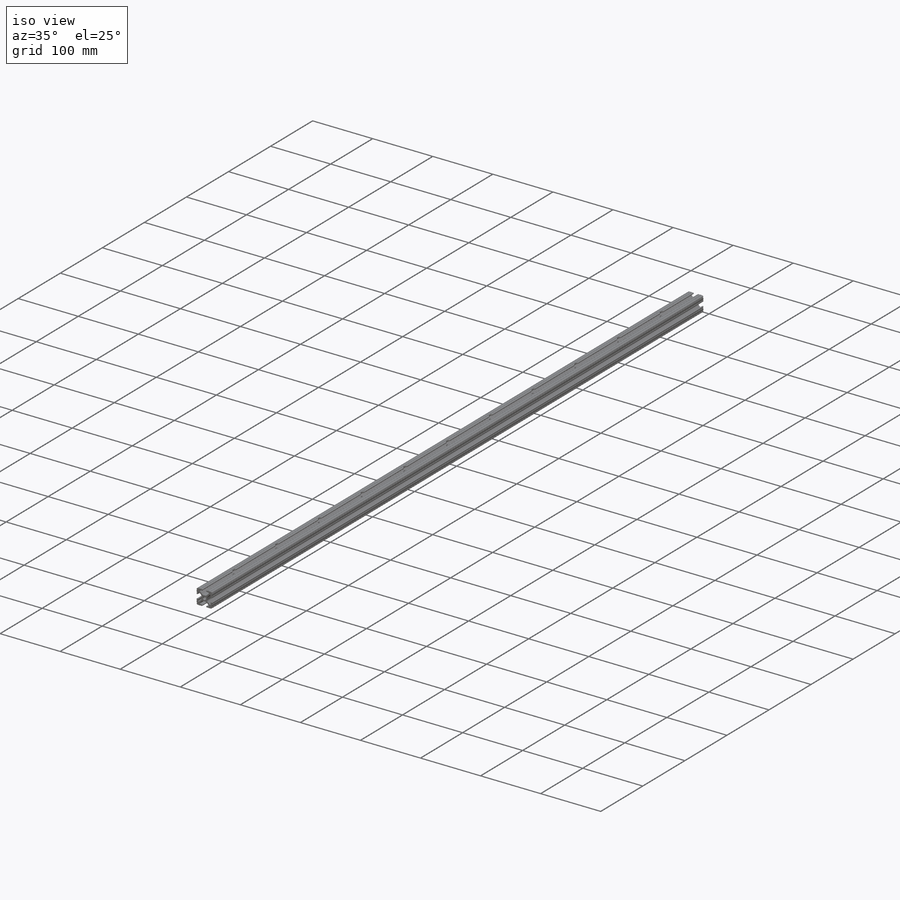
[diagram: iso view]
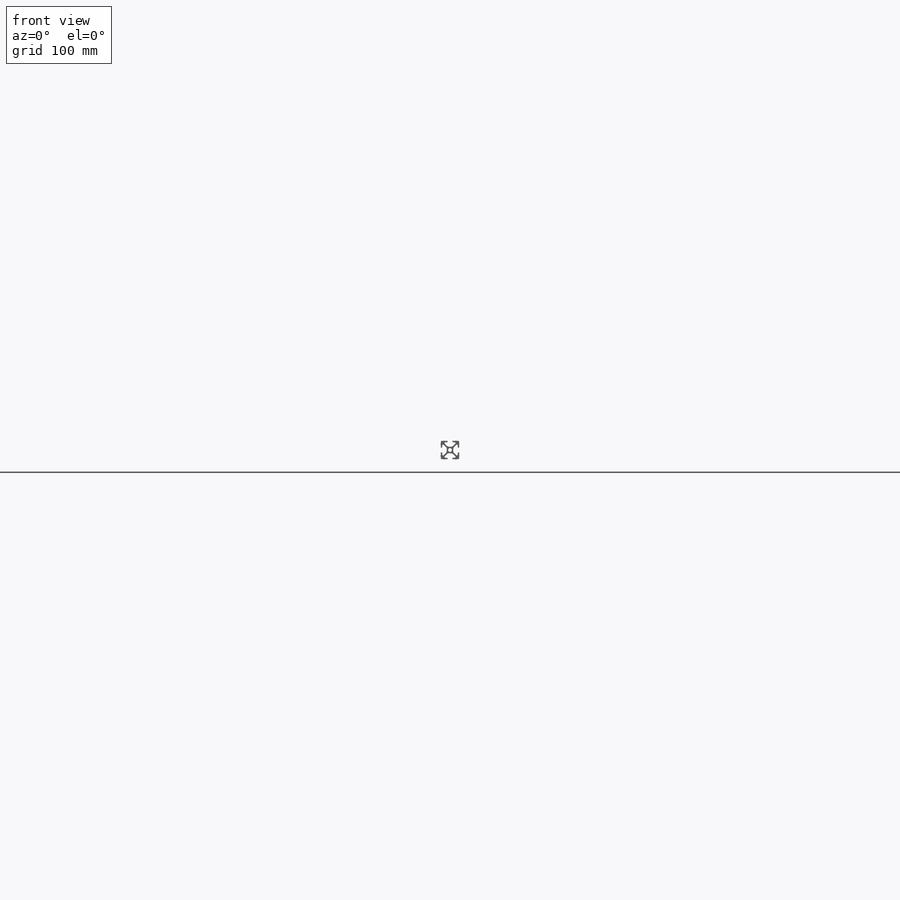
[diagram: front view]
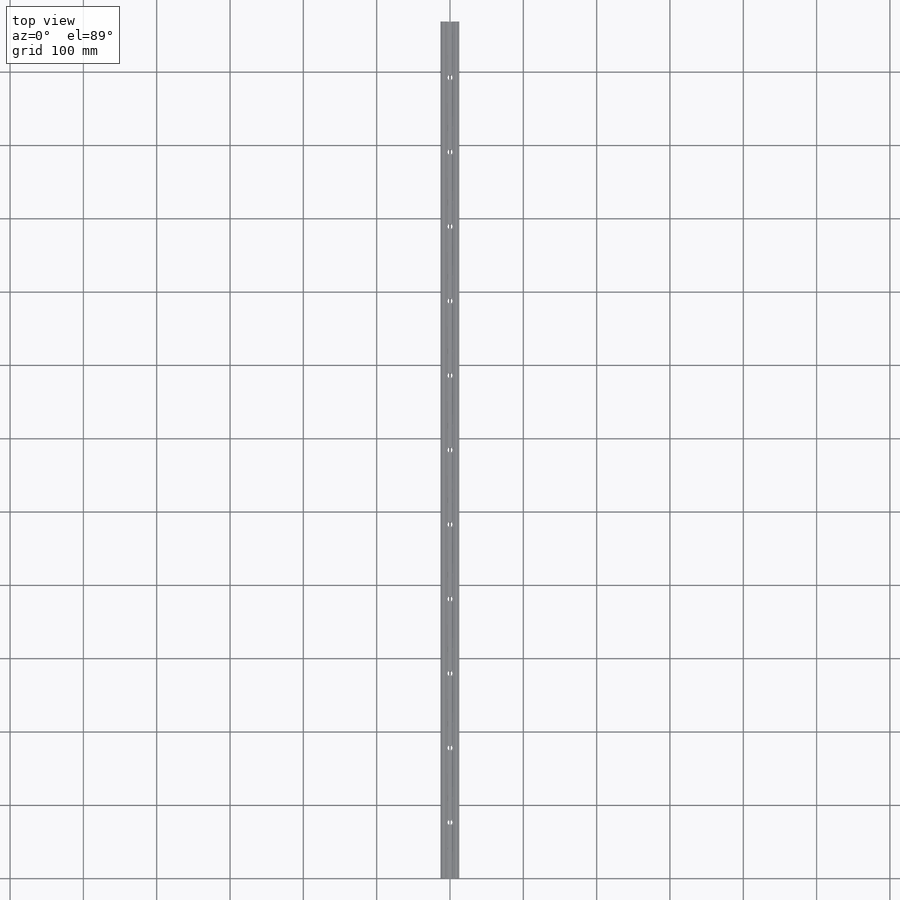
[diagram: top view]
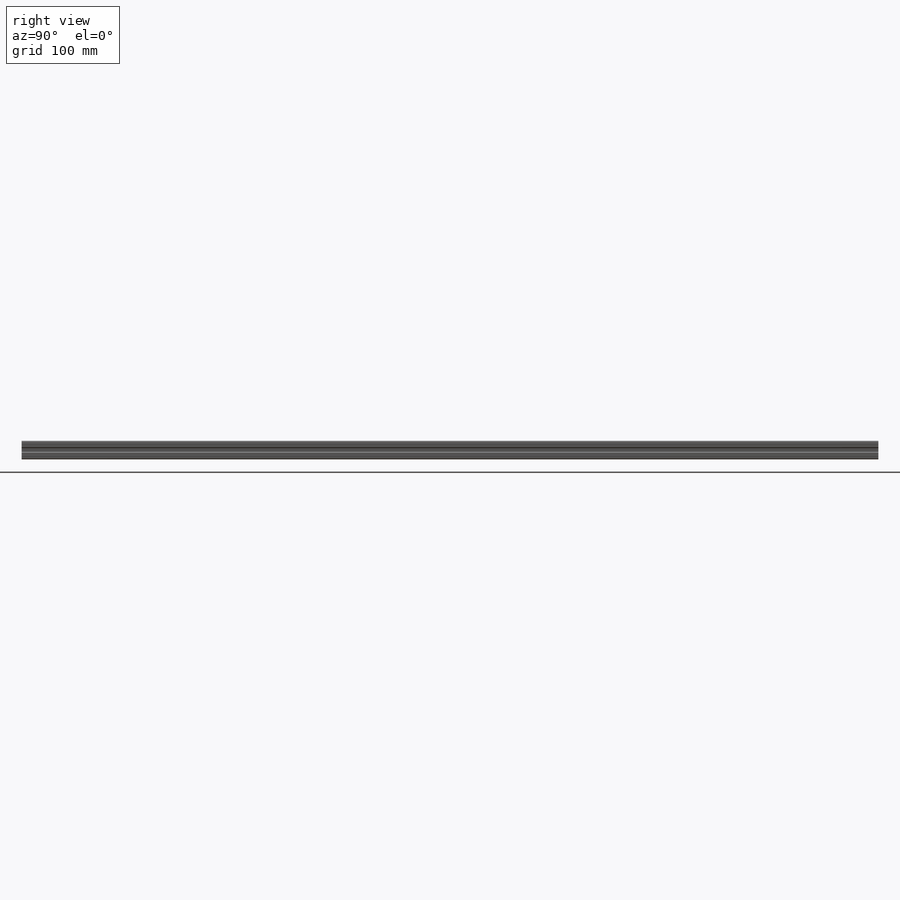
[diagram: right view]
SOLIDWORKS PART (.sldprt)
format: sldprt  version: not decoded by parser v0  size: 1,439,232 bytes
history: native  units: mm
features: sketch x4, material x1, extrude x1, hole x1, pattern_linear x1, plane x1, cut_extrude x1 (+12 scaffold rows collapsed)
feature tree (22):
  scaffold x12  (default folders/planes/origin — collapsed)
  material  "6061-T6 (SS)"
  sketch  "Sketch1"  dims[c1.D1=5.207mm c1.D9=~1.027411mm c1.D7=~1.033909mm c1.D11=~1.049012mm c1.D12=0.508mm c1.D13=2.1082mm c1.D14=~1.027411mm c1.D15=3.175mm c1.D16=~1.080373mm c2.D7=~1.080373mm c2.D2=25.4mm c2.D3=12.7mm c2.D4=5.842mm c2.D5=8.2042mm c2.D6=6.477mm c3.D7=9.017mm c3.D8=2.2098mm c3.D9=14.859mm c3.D10=2.2098mm c3.D2=25.4mm c3.D4=6.477mm c3.D6=9.017mm c3.D3=12.7mm c3.D5=8.2042mm c4.D7=2.2098mm c4.D11=2.2098mm c5.D7=~1.655778mm c5.D11=~1.709254mm c5.D12=~3.898273mm c5.D13=~3.95227mm c5.D14=~5.441006mm c5.D15=~5.825127mm c5.D16=~7.17965mm c5.D17=~7.207036mm c5.D18=7.6835mm c5.D19=~8.737131mm c5.D20=~9.462789mm c5.D21=~9.550443mm c5.D22=~10.058443mm c5.D23=~10.566443mm c5.D24=10.5918mm c5.D25=~12.699847mm c5.D26=~1.655778mm c5.D27=~1.709254mm c5.D28=~3.898273mm c5.D29=~3.95227mm c5.D30=~5.441006mm c5.D31=~5.825127mm c5.D32=~7.17965mm c5.D33=~7.207036mm c5.D34=7.6835mm c5.D35=~8.737131mm c5.D36=~9.462789mm c5.D37=~9.550443mm c5.D38=~10.058443mm c5.D39=~10.566443mm c5.D40=10.5918mm c5.D41=~12.699847mm c6.D7=~1.593186mm c6.D11=~3.840816mm c6.D12=~5.423169mm c6.D13=~5.825084mm c6.D14=~6.402089mm c6.D15=~7.129409mm c6.D16=7.6708mm c6.D17=~8.724371mm c6.D18=~9.456291mm c6.D19=9.5504mm c6.D20=10.0584mm c6.D21=10.5664mm c6.D22=10.5918mm c6.D23=~12.699848mm c6.D24=~1.593186mm c6.D25=~3.840816mm c6.D26=~5.42369mm c6.D27=~5.825084mm c6.D28=~6.402089mm c6.D29=~7.129409mm c6.D30=7.6708mm c6.D31=~8.645193mm c6.D32=~9.409827mm c6.D33=9.5504mm c6.D34=10.0584mm c6.D35=10.5664mm c6.D36=10.5918mm c6.D37=~12.699848mm c7.D7=~12.699848mm c7.D1=0.0mm]
  extrude  "Extrude1"  Depth=1168.4mm LENGTH=1168.4mm
  hole  "Hole1, 8020 No. 7256"  Diameter=20mm Depth=100mm
  sketch  "Sketch3"  dims[D1=76.2mm]
  sketch  "Sketch2"  dims[c1.Hole Ø=20.0mm c1.Depth=100.0mm c1.Drill Angle=118.0deg c1.C.Sink Angle=90.0deg c1.C.Bore Ø=40.0mm c1.C.Bore Depth=20.0mm c1.Diameter=6.5278mm c2.Depth=25.4mm c2.C-Bore Diameter=10.3124mm c2.C-Bore Depth=8.255mm c2.Drill Angle=118.0deg]
  pattern_linear  "LPattern1"  Count1=11 Count2=1 Spacing1=101.6mm Spacing2=2.54mm
  plane  "mid plane"
  sketch  "Sketch4"  dims[D1=254.0mm D2=25.4mm D3=50.8mm]
  cut_extrude  "Cut-Extrude1"  [1 undecoded]
decode coverage: 7 of 8 modeling features carry decoded parameters
note: ~ marks probable driven/reference dimensions
note: 1 parameter value undecoded
note: suppression state not decoded; provenance and decode notes live in map.json
